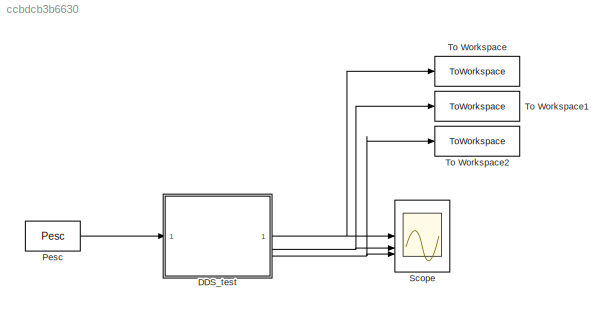
MODEL slx_ccbdcb3b6630
KIND model
CONFIG AbsTol = auto
CONFIG EnableMultiTasking = on
CONFIG FixedStep = auto
CONFIG MaxStep = auto
CONFIG MinStep = auto
CONFIG RelTol = 1e-3
CONFIG SampleTimeConstraint = Unconstrained
CONFIG SolverName = VariableStepDiscrete
CONFIG StartTime = 0.0
CONFIG StopTime = sim_time
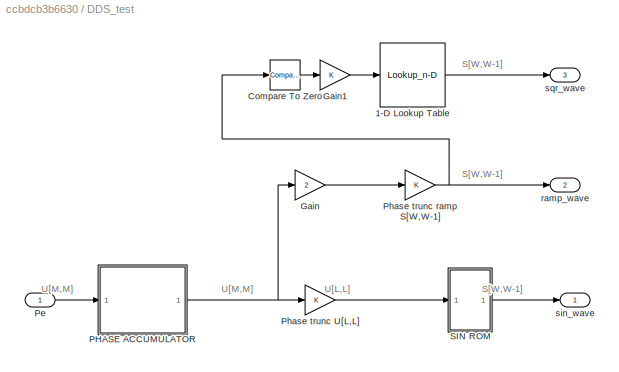
BLOCK [SubSystem] DDS_test
BLOCK [Lookup_n-D] DDS_test/1-D Lookup Table
  BreakpointsForDimension1 = [0:1]
  InputPortMap = u0
  InternalRulePriority = Speed
  NumberOfTableDimensions = 1
  RndMeth = Simplest
  Table = [ -1+2^-(W-1) 1-2^-(W-1)]
BLOCK [Reference] DDS_test/Compare To Zero  REF=simulink/Logic and Bit
Operations/Compare
To Zero
  SourceBlock = simulink/Logic and Bit\nOperations/Compare\nTo Zero
  SourceType = Compare To Zero
BLOCK [Gain] DDS_test/Gain
  Gain = 2
BLOCK [Gain] DDS_test/Gain1
  OutDataTypeStr = double
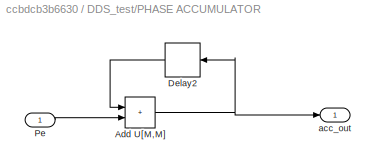
BLOCK [SubSystem] DDS_test/PHASE ACCUMULATOR
BLOCK [Sum] DDS_test/PHASE ACCUMULATOR/Add U[M,M]
  AccumDataTypeStr = fixdt(0,M,M)
  IconShape = rectangular
  OutDataTypeStr = fixdt(0,M,M)
  RndMeth = Convergent
BLOCK [Delay] DDS_test/PHASE ACCUMULATOR/Delay2
  DelayLength = 1
  InputPortMap = u0
BLOCK [Inport] DDS_test/PHASE ACCUMULATOR/Pe
BLOCK [Outport] DDS_test/PHASE ACCUMULATOR/acc_out
  VectorParamsAs1DForOutWhenUnconnected = off
BLOCK [Inport] DDS_test/Pe
BLOCK [Gain] DDS_test/Phase trunc U[L,L]
  OutDataTypeStr = fixdt(0,L,L)
BLOCK [Gain] DDS_test/Phase trunc ramp S[W,W-1]
  OutDataTypeStr = fixdt(1,W,W-1)
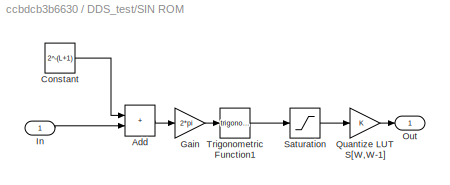
BLOCK [SubSystem] DDS_test/SIN ROM
BLOCK [Sum] DDS_test/SIN ROM/Add
  IconShape = rectangular
BLOCK [Constant] DDS_test/SIN ROM/Constant
  Value = 2^-(L+1)
BLOCK [Gain] DDS_test/SIN ROM/Gain
  Gain = 2*pi
BLOCK [Inport] DDS_test/SIN ROM/In
BLOCK [Outport] DDS_test/SIN ROM/Out
  VectorParamsAs1DForOutWhenUnconnected = off
BLOCK [Gain] DDS_test/SIN ROM/Quantize LUT S[W,W-1]
  OutDataTypeStr = fixdt(1,W,W-1)
  RndMeth = Round
  SaturateOnIntegerOverflow = on
BLOCK [Saturate] DDS_test/SIN ROM/Saturation
  LowerLimit = -(1-2^-(W-1))
  UpperLimit = 1-2^-(W-1)
BLOCK [Trigonometry] DDS_test/SIN ROM/Trigonometric Function1
BLOCK [Outport] DDS_test/ramp_wave
  Port = 2
  VectorParamsAs1DForOutWhenUnconnected = off
BLOCK [Outport] DDS_test/sin_wave
  VectorParamsAs1DForOutWhenUnconnected = off
BLOCK [Outport] DDS_test/sqr_wave
  Port = 3
  VectorParamsAs1DForOutWhenUnconnected = off
BLOCK [Constant] Pesc
  SampleTime = 1/fclk
  Value = Pesc
BLOCK [Scope] Scope
  Floating = off
  NumInputPorts = 3
  ScopeSpecificationString = Simulink.scopes.TimeScopeBlockCfg('CurrentConfiguration', extmgr.ConfigurationSet(extmgr.Configuration('Core','General UI',true),extmgr.Configuration('Core','Source UI',true),extmgr.Configuration('Sources','WiredSimulink',true,'DataLoggingLimitDataPoints',true,'DataLoggingSaveFormat','Array','DataLoggingDecimation','1','DataLoggingDecimateData',true),extmgr.Configuration('Visuals','Time Domain',tr...<+3002ch>
BLOCK [ToWorkspace] To Workspace
  MaxDataPoints = inf
  SampleTime = -1
  Save2DSignal = 2-D array (concatenate along first dimension)
  VariableName = sin_wave
BLOCK [ToWorkspace] To Workspace1
  MaxDataPoints = inf
  SampleTime = -1
  Save2DSignal = 2-D array (concatenate along first dimension)
  VariableName = ramp_wave
BLOCK [ToWorkspace] To Workspace2
  MaxDataPoints = inf
  SampleTime = -1
  Save2DSignal = 2-D array (concatenate along first dimension)
  VariableName = sqr_wave
ANNOTATION DDS_test: S[W,W-1]
ANNOTATION DDS_test: U[L,L]
ANNOTATION DDS_test: U[M,M]
LINE DDS_test/1-D Lookup Table:1 -> DDS_test/sqr_wave:1
LINE DDS_test/Compare To Zero:1 -> DDS_test/Gain1:1
LINE DDS_test/Gain1:1 -> DDS_test/1-D Lookup Table:1
LINE DDS_test/Gain:1 -> DDS_test/Phase trunc ramp S[W,W-1]:1
NET DDS_test/PHASE ACCUMULATOR/Add U[M,M]:1 -> DDS_test/PHASE ACCUMULATOR/Delay2:1, DDS_test/PHASE ACCUMULATOR/acc_out:1
LINE DDS_test/PHASE ACCUMULATOR/Delay2:1 -> DDS_test/PHASE ACCUMULATOR/Add U[M,M]:1
LINE DDS_test/PHASE ACCUMULATOR/Pe:1 -> DDS_test/PHASE ACCUMULATOR/Add U[M,M]:2
NET DDS_test/PHASE ACCUMULATOR:1 -> DDS_test/Gain:1, DDS_test/Phase trunc U[L,L]:1
LINE DDS_test/Pe:1 -> DDS_test/PHASE ACCUMULATOR:1
LINE DDS_test/Phase trunc U[L,L]:1 -> DDS_test/SIN ROM:1
NET DDS_test/Phase trunc ramp S[W,W-1]:1 -> DDS_test/Compare To Zero:1, DDS_test/ramp_wave:1
LINE DDS_test/SIN ROM/Add:1 -> DDS_test/SIN ROM/Gain:1
LINE DDS_test/SIN ROM/Constant:1 -> DDS_test/SIN ROM/Add:1
LINE DDS_test/SIN ROM/Gain:1 -> DDS_test/SIN ROM/Trigonometric Function1:1
LINE DDS_test/SIN ROM/In:1 -> DDS_test/SIN ROM/Add:2
LINE DDS_test/SIN ROM/Quantize LUT S[W,W-1]:1 -> DDS_test/SIN ROM/Out:1
LINE DDS_test/SIN ROM/Saturation:1 -> DDS_test/SIN ROM/Quantize LUT S[W,W-1]:1
LINE DDS_test/SIN ROM/Trigonometric Function1:1 -> DDS_test/SIN ROM/Saturation:1
LINE DDS_test/SIN ROM:1 -> DDS_test/sin_wave:1
NET DDS_test:1 -> Scope:1, To Workspace:1
NET DDS_test:2 -> Scope:2, To Workspace1:1
NET DDS_test:3 -> Scope:3, To Workspace2:1
LINE Pesc:1 -> DDS_test:1
note: NET lines group one-source signal fan-out (src -> all destinations, sorted); 1:1 wires keep LINE
